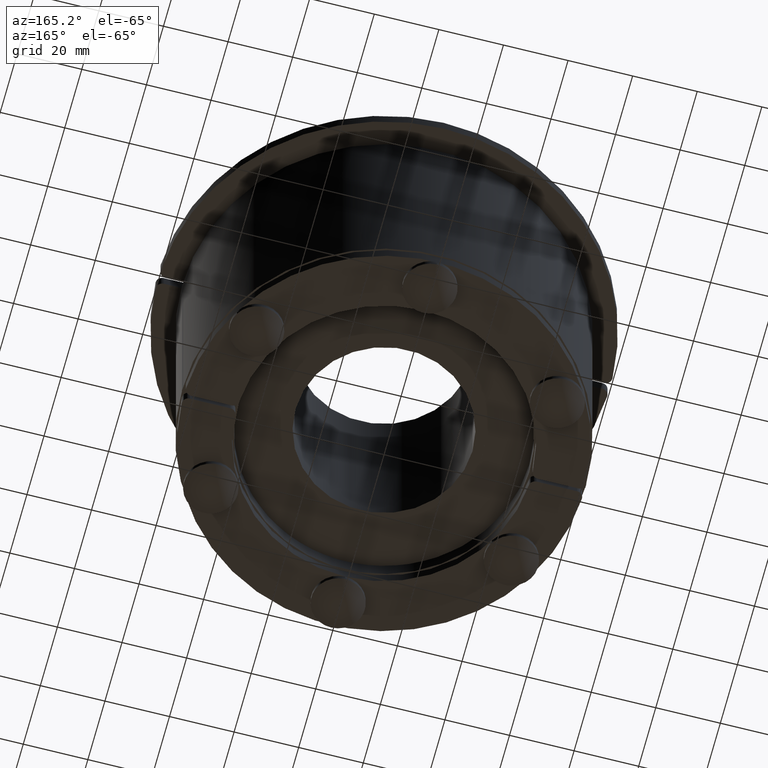
[diagram: clean part render]
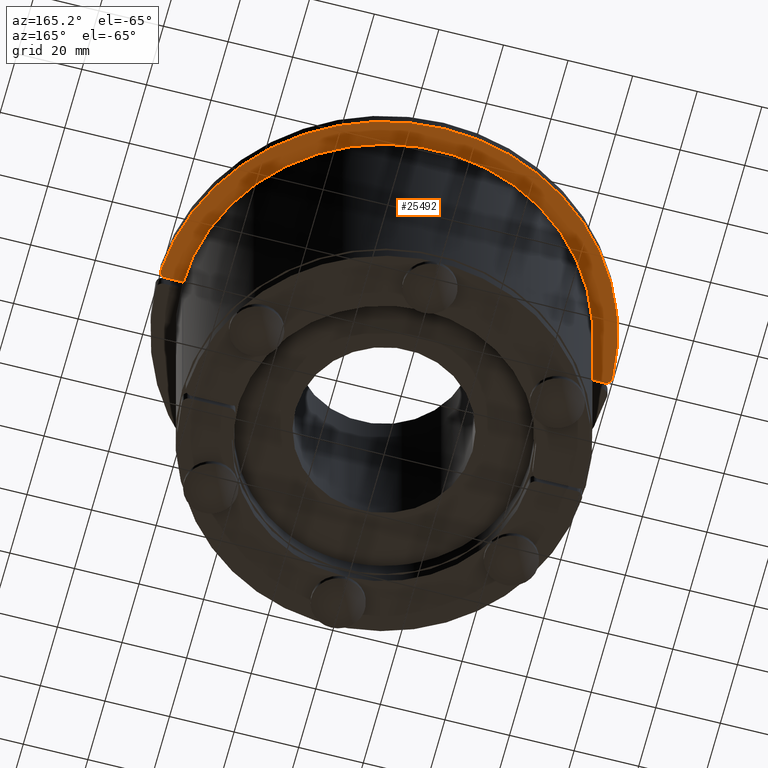
[diagram: same view with one face highlighted and labeled with its STEP entity id]
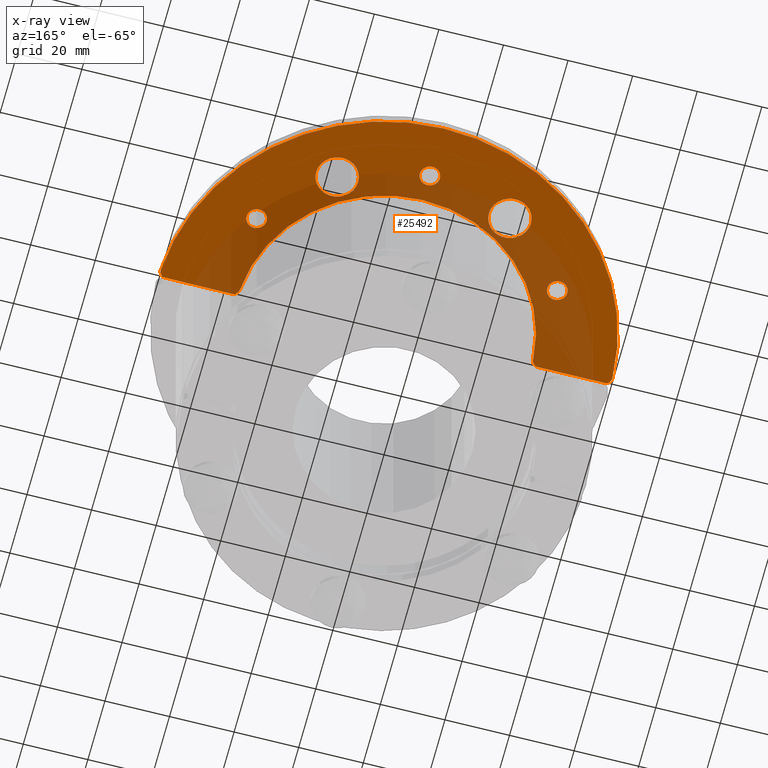
[diagram: x-ray of the same camera — body ghosted, the highlighted face saturated]
A machine part, auxiliary view. The second image highlights one B-rep face of the part: STEP entity #25492.
The next image is the same camera in x-ray: the body ghosted, the highlighted face saturated — about 37% of this face is hidden behind the body in this view.
In plain terms, the highlighted planar face has unit normal (0, -0, 1).
Its self-contained STEP definition (entity closure, byte-faithful):
#25036=CARTESIAN_POINT('',(-20.250000000000021,46.33235910246745,-4.0));
#25037=VERTEX_POINT('',#25036);
#25038=CARTESIAN_POINT('',(-26.750000000000021,46.33235910246745,-4.0));
#25039=DIRECTION('',(0.0,0.0,1.0));
#25040=DIRECTION('',(-1.0,0.0,0.0));
#25041=AXIS2_PLACEMENT_3D('',#25038,#25039,#25040);
#25042=CIRCLE('',#25041,6.5);
#25043=EDGE_CURVE('',#25037,#25037,#25042,.T.);
#25064=CARTESIAN_POINT('',(33.25,46.332359102467471,-4.0));
#25065=VERTEX_POINT('',#25064);
#25066=CARTESIAN_POINT('',(26.75,46.332359102467471,-4.0));
#25067=DIRECTION('',(0.0,0.0,1.0));
#25068=DIRECTION('',(-1.0,0.0,0.0));
#25069=AXIS2_PLACEMENT_3D('',#25066,#25067,#25068);
#25070=CIRCLE('',#25069,6.5);
#25071=EDGE_CURVE('',#25065,#25065,#25070,.T.);
#25092=CARTESIAN_POINT('',(67.933791297115164,1.000000000000002,-4.0));
#25093=VERTEX_POINT('',#25092);
#25094=CARTESIAN_POINT('',(69.931843982324438,3.088235294117641,-4.0));
#25095=VERTEX_POINT('',#25094);
#25096=CARTESIAN_POINT('',(67.933791297115164,2.999999999999994,-4.0));
#25097=DIRECTION('',(0.0,0.0,1.0));
#25098=DIRECTION('',(0.722536382149308,-0.691332898443715,0.0));
#25099=AXIS2_PLACEMENT_3D('',#25096,#25097,#25098);
#25100=CIRCLE('',#25099,2.0);
#25101=EDGE_CURVE('',#25093,#25095,#25100,.T.);
#25143=CARTESIAN_POINT('',(47.405168494585055,1.000000000000002,-4.0));
#25144=VERTEX_POINT('',#25143);
#25151=CARTESIAN_POINT('',(67.933791297115178,1.000000000000002,-4.0));
#25152=DIRECTION('',(-1.0,0.0,0.0));
#25153=VECTOR('',#25152,20.528622802530116);
#25154=LINE('',#25151,#25153);
#25155=EDGE_CURVE('',#25093,#25144,#25154,.T.);
#25265=CARTESIAN_POINT('',(45.409161400076208,2.873684210526318,-4.0));
#25266=VERTEX_POINT('',#25265);
#25267=CARTESIAN_POINT('',(47.405168494585055,3.000000000000003,-4.0));
#25268=DIRECTION('',(0.0,0.0,1.0));
#25269=DIRECTION('',(-0.684412925529302,-0.729094607968282,0.0));
#25270=AXIS2_PLACEMENT_3D('',#25267,#25268,#25269);
#25271=CIRCLE('',#25270,2.0);
#25272=EDGE_CURVE('',#25266,#25144,#25271,.T.);
#25292=CARTESIAN_POINT('',(-45.409161400076215,2.873684210526307,-4.0));
#25293=VERTEX_POINT('',#25292);
#25300=CARTESIAN_POINT('',(0.0,0.0,-4.0));
#25301=DIRECTION('',(0.0,0.0,1.0));
#25302=DIRECTION('',(0.999758454102757,0.021978021978022,0.0));
#25303=AXIS2_PLACEMENT_3D('',#25300,#25301,#25302);
#25304=CIRCLE('',#25303,45.5);
#25305=EDGE_CURVE('',#25266,#25293,#25304,.T.);
#25315=CARTESIAN_POINT('',(-47.405168494585055,0.999999999999994,-4.0));
#25316=VERTEX_POINT('',#25315);
#25317=CARTESIAN_POINT('',(-47.405168494585055,2.99999999999999,-4.0));
#25318=DIRECTION('',(0.0,0.0,1.0));
#25319=DIRECTION('',(0.684412925529303,-0.729094607968281,0.0));
#25320=AXIS2_PLACEMENT_3D('',#25317,#25318,#25319);
#25321=CIRCLE('',#25320,2.0);
#25322=EDGE_CURVE('',#25316,#25293,#25321,.T.);
#25342=CARTESIAN_POINT('',(-67.933791297115164,0.999999999999992,-4.0));
#25343=VERTEX_POINT('',#25342);
#25350=CARTESIAN_POINT('',(-47.405168494585062,0.999999999999994,-4.0));
#25351=DIRECTION('',(-1.0,0.0,0.0));
#25352=VECTOR('',#25351,20.528622802530101);
#25353=LINE('',#25350,#25352);
#25354=EDGE_CURVE('',#25316,#25343,#25353,.T.);
#25364=CARTESIAN_POINT('',(-69.931843982324438,3.08823529411764,-4.0));
#25365=VERTEX_POINT('',#25364);
#25366=CARTESIAN_POINT('',(-67.933791297115164,2.999999999999992,-4.0));
#25367=DIRECTION('',(0.0,0.0,1.0));
#25368=DIRECTION('',(-0.722536382149307,-0.691332898443717,0.0));
#25369=AXIS2_PLACEMENT_3D('',#25366,#25367,#25368);
#25370=CIRCLE('',#25369,2.0);
#25371=EDGE_CURVE('',#25365,#25343,#25370,.T.);
#25392=CARTESIAN_POINT('',(-49.648865453413578,26.875000000000021,-4.0));
#25393=VERTEX_POINT('',#25392);
#25394=CARTESIAN_POINT('',(-46.548865453413569,26.875000000000021,-4.000000000000004));
#25395=DIRECTION('',(0.0,0.0,1.0));
#25396=DIRECTION('',(-1.0,0.0,0.0));
#25397=AXIS2_PLACEMENT_3D('',#25394,#25395,#25396);
#25398=CIRCLE('',#25397,3.100000000000001);
#25399=EDGE_CURVE('',#25393,#25393,#25398,.T.);
#25412=CARTESIAN_POINT('',(43.448865453413568,26.875000000000007,-4.0));
#25413=VERTEX_POINT('',#25412);
#25414=CARTESIAN_POINT('',(46.548865453413569,26.875000000000007,-4.000000000000004));
#25415=DIRECTION('',(0.0,0.0,1.0));
#25416=DIRECTION('',(-1.0,0.0,0.0));
#25417=AXIS2_PLACEMENT_3D('',#25414,#25415,#25416);
#25418=CIRCLE('',#25417,3.100000000000001);
#25419=EDGE_CURVE('',#25413,#25413,#25418,.T.);
#25432=CARTESIAN_POINT('',(-3.100000000000002,53.75,-4.0));
#25433=VERTEX_POINT('',#25432);
#25434=CARTESIAN_POINT('',(-1.500175E-015,53.75,-4.000000000000004));
#25435=DIRECTION('',(0.0,0.0,1.0));
#25436=DIRECTION('',(-1.0,0.0,0.0));
#25437=AXIS2_PLACEMENT_3D('',#25434,#25435,#25436);
#25438=CIRCLE('',#25437,3.100000000000001);
#25439=EDGE_CURVE('',#25433,#25433,#25438,.T.);
#25450=CARTESIAN_POINT('',(0.0,0.0,-4.0));
#25451=DIRECTION('',(0.0,0.0,-1.0));
#25452=DIRECTION('',(-0.999897953976978,-0.014285714285714,0.0));
#25453=AXIS2_PLACEMENT_3D('',#25450,#25451,#25452);
#25454=CIRCLE('',#25453,70.0);
#25455=EDGE_CURVE('',#25365,#25095,#25454,.T.);
#25462=CARTESIAN_POINT('',(-1.088769E-014,33.01283094405192,-4.0));
#25463=DIRECTION('',(0.0,0.0,1.0));
#25464=DIRECTION('',(1.0,0.0,0.0));
#25465=AXIS2_PLACEMENT_3D('',#25462,#25463,#25464);
#25466=PLANE('',#25465);
#25467=ORIENTED_EDGE('',*,*,#25101,.F.);
#25468=ORIENTED_EDGE('',*,*,#25155,.T.);
#25469=ORIENTED_EDGE('',*,*,#25272,.F.);
#25470=ORIENTED_EDGE('',*,*,#25305,.T.);
#25471=ORIENTED_EDGE('',*,*,#25322,.F.);
#25472=ORIENTED_EDGE('',*,*,#25354,.T.);
#25473=ORIENTED_EDGE('',*,*,#25371,.F.);
#25474=ORIENTED_EDGE('',*,*,#25455,.T.);
#25475=EDGE_LOOP('',(#25467,#25468,#25469,#25470,#25471,#25472,#25473,#25474));
#25476=FACE_OUTER_BOUND('',#25475,.T.);
#25477=ORIENTED_EDGE('',*,*,#25043,.T.);
#25478=EDGE_LOOP('',(#25477));
#25479=FACE_BOUND('',#25478,.T.);
#25480=ORIENTED_EDGE('',*,*,#25071,.T.);
#25481=EDGE_LOOP('',(#25480));
#25482=FACE_BOUND('',#25481,.T.);
#25483=ORIENTED_EDGE('',*,*,#25399,.T.);
#25484=EDGE_LOOP('',(#25483));
#25485=FACE_BOUND('',#25484,.T.);
#25486=ORIENTED_EDGE('',*,*,#25419,.T.);
#25487=EDGE_LOOP('',(#25486));
#25488=FACE_BOUND('',#25487,.T.);
#25489=ORIENTED_EDGE('',*,*,#25439,.T.);
#25490=EDGE_LOOP('',(#25489));
#25491=FACE_BOUND('',#25490,.T.);
#25492=ADVANCED_FACE('',(#25476,#25479,#25482,#25485,#25488,#25491),#25466,.F.);